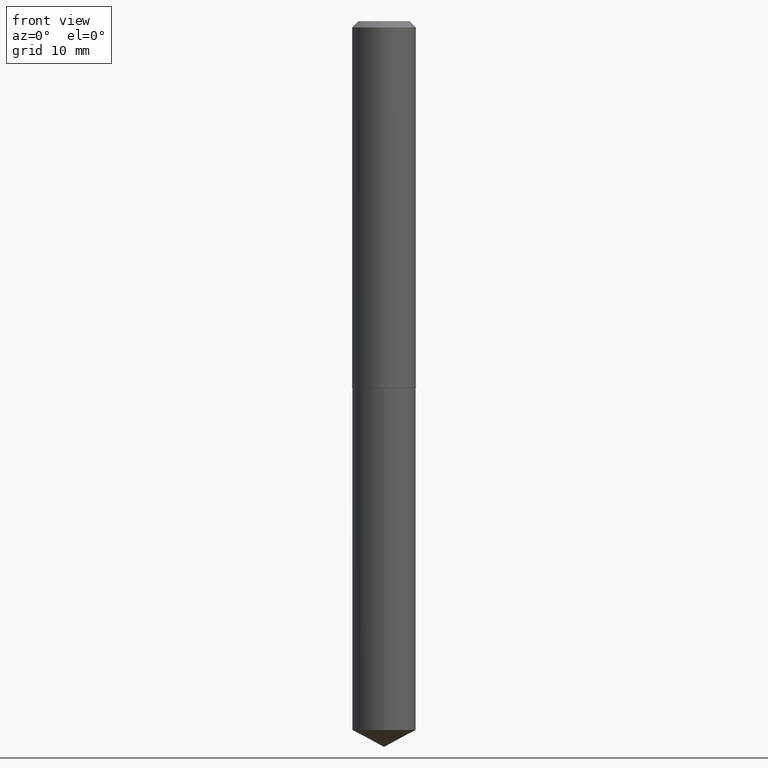
[diagram: clean part render]
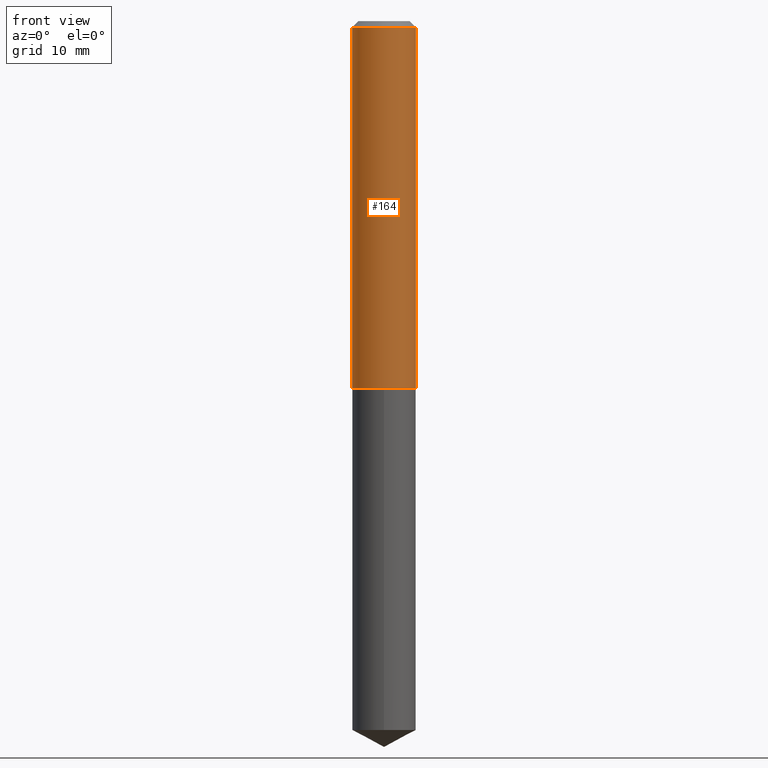
[diagram: same view with one face highlighted and labeled with its STEP entity id]
A machine part, front view. The second image highlights one B-rep face of the part: STEP entity #164.
In plain terms, the highlighted cylindrical surface (edge-blend (fillet) strip) has radius 4.0005 mm, axis along (-0, 0, 1).
Its self-contained STEP definition (entity closure, byte-faithful):
#9 = CARTESIAN_POINT ( 'NONE',  ( -0.1575000000000000011, -2.096287643151965949E-15, -0.03125000000000020123 ) ) ;
#11 = LINE ( 'NONE', #349, #48 ) ;
#14 = AXIS2_PLACEMENT_3D ( 'NONE', #132, #243, #357 ) ;
#30 = ORIENTED_EDGE ( 'NONE', *, *, #293, .T. ) ;
#32 = CARTESIAN_POINT ( 'NONE',  ( 0.000000000000000000, 0.000000000000000000, 0.000000000000000000 ) ) ;
#35 = DIRECTION ( 'NONE',  ( 1.000000000000000000, -6.982962677686267499E-15, 4.876176775795936353E-29 ) ) ;
#44 = CARTESIAN_POINT ( 'NONE',  ( -0.1575000000000000844, 1.119104808822158392E-15, -7.747322767151481189E-30 ) ) ;
#48 = VECTOR ( 'NONE', #52, 39.37007874015748143 ) ;
#51 = EDGE_CURVE ( 'NONE', #92, #65, #82, .T. ) ;
#52 = DIRECTION ( 'NONE',  ( -2.445468806185136877E-29, 3.491481338843145188E-15, 1.000000000000000000 ) ) ;
#65 = VERTEX_POINT ( 'NONE', #9 ) ;
#72 = FACE_OUTER_BOUND ( 'NONE', #241, .T. ) ;
#77 = CARTESIAN_POINT ( 'NONE',  ( 0.1575000000000000011, -1.208925413574435989E-15, -0.03125000000000020123 ) ) ;
#82 = LINE ( 'NONE', #44, #285 ) ;
#92 = VERTEX_POINT ( 'NONE', #343 ) ;
#99 = CARTESIAN_POINT ( 'NONE',  ( 7.642090019328601786E-31, -1.091087918388490144E-16, -0.03125000000000020123 ) ) ;
#108 = CIRCLE ( 'NONE', #14, 0.1575000000000001954 ) ;
#126 = CIRCLE ( 'NONE', #342, 0.1575000000000000011 ) ;
#132 = CARTESIAN_POINT ( 'NONE',  ( 4.427765820478809342E-29, -6.321676112109400370E-15, -1.810600000000000431 ) ) ;
#149 = DIRECTION ( 'NONE',  ( -2.445468806185136597E-29, 3.491481338843145583E-15, 1.000000000000000000 ) ) ;
#152 = ORIENTED_EDGE ( 'NONE', *, *, #163, .F. ) ;
#163 = EDGE_CURVE ( 'NONE', #65, #260, #126, .T. ) ;
#164 = ADVANCED_FACE ( 'NONE', ( #72 ), #326, .T. ) ;
#183 = EDGE_CURVE ( 'NONE', #92, #272, #108, .T. ) ;
#208 = DIRECTION ( 'NONE',  ( 1.000000000000000000, -6.982962677686265922E-15, 0.000000000000000000 ) ) ;
#213 = ORIENTED_EDGE ( 'NONE', *, *, #183, .T. ) ;
#221 = DIRECTION ( 'NONE',  ( -2.445468806185136877E-29, 3.491481338843145188E-15, 1.000000000000000000 ) ) ;
#241 = EDGE_LOOP ( 'NONE', ( #301, #213, #30, #152 ) ) ;
#243 = DIRECTION ( 'NONE',  ( -2.445468806185136597E-29, 3.491481338843145583E-15, 1.000000000000000000 ) ) ;
#260 = VERTEX_POINT ( 'NONE', #77 ) ;
#272 = VERTEX_POINT ( 'NONE', #319 ) ;
#285 = VECTOR ( 'NONE', #221, 39.37007874015748143 ) ;
#293 = EDGE_CURVE ( 'NONE', #272, #260, #11, .T. ) ;
#301 = ORIENTED_EDGE ( 'NONE', *, *, #51, .F. ) ;
#305 = DIRECTION ( 'NONE',  ( -2.445468806185136597E-29, 3.491481338843145583E-15, 1.000000000000000000 ) ) ;
#319 = CARTESIAN_POINT ( 'NONE',  ( 0.1575000000000001954, -7.421492733844987850E-15, -1.810600000000000431 ) ) ;
#326 = CYLINDRICAL_SURFACE ( 'NONE', #386, 0.1575000000000000844 ) ;
#342 = AXIS2_PLACEMENT_3D ( 'NONE', #99, #305, #208 ) ;
#343 = CARTESIAN_POINT ( 'NONE',  ( -0.1575000000000001954, -5.202571303287241189E-15, -1.810600000000000431 ) ) ;
#349 = CARTESIAN_POINT ( 'NONE',  ( 0.1575000000000000844, -1.099816621735587677E-15, 7.679978421878603638E-30 ) ) ;
#357 = DIRECTION ( 'NONE',  ( 1.000000000000000000, -6.982962677686265922E-15, 0.000000000000000000 ) ) ;
#386 = AXIS2_PLACEMENT_3D ( 'NONE', #32, #149, #35 ) ;